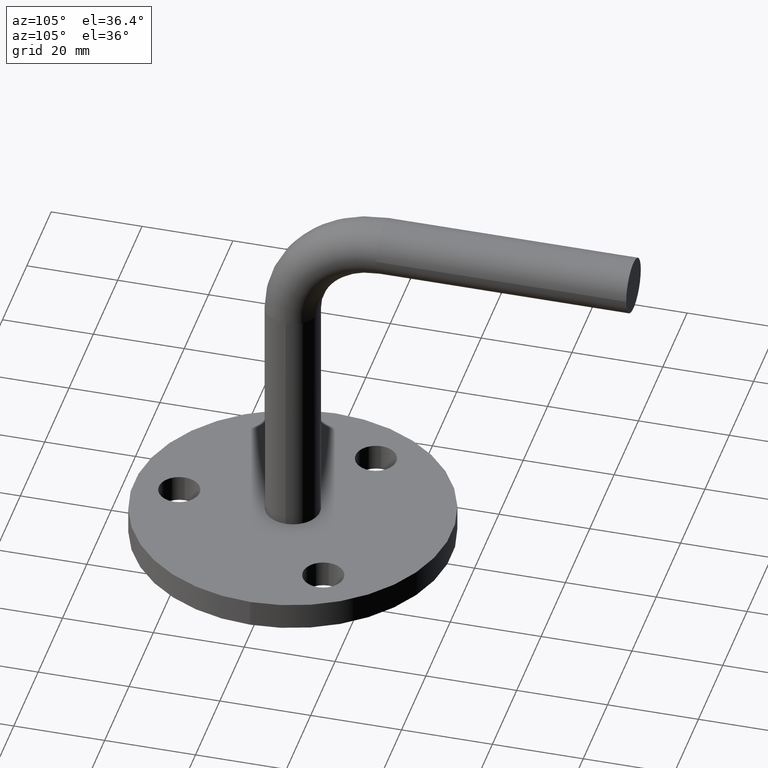
[diagram: clean part render]
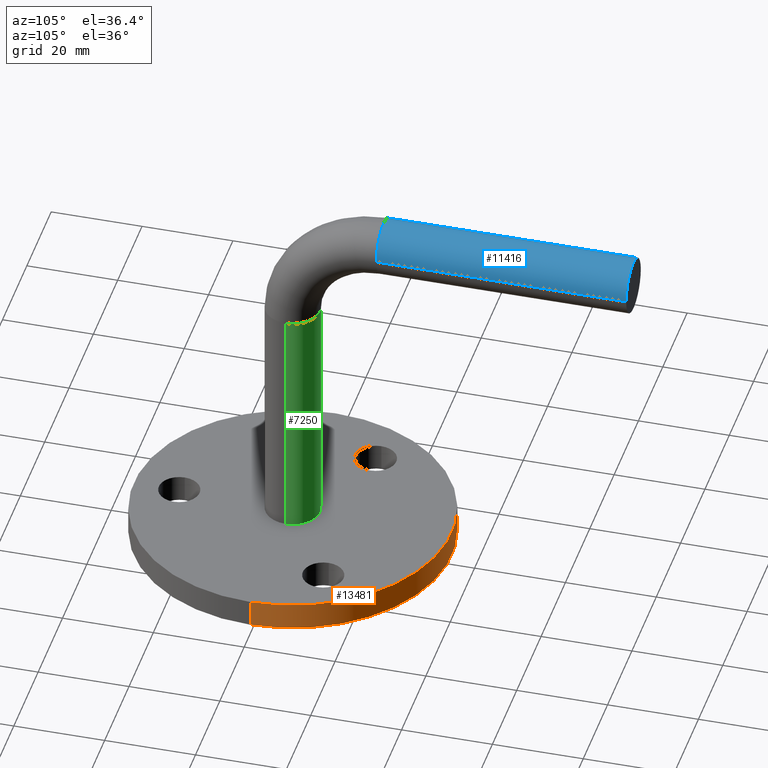
[diagram: same view with three faces highlighted in distinct colors, each labeled with its STEP entity id]
A machine part, auxiliary view with three faces highlighted in distinct colors.
Their STEP definitions:

[orange] entity #13481 — the highlighted cylindrical surface (partial cylindrical patch) has radius 35 mm, axis along (-0, -0, -1).
#420 = CARTESIAN_POINT ( 'NONE',  ( -35.00000000000000700, 0.0000000000000000000, 0.0000000000000000000 ) ) ;
#504 = DIRECTION ( 'NONE',  ( -0.0000000000000000000, -0.0000000000000000000, -1.000000000000000000 ) ) ;
#1533 = VERTEX_POINT ( 'NONE', #10910 ) ;
#1666 = EDGE_LOOP ( 'NONE', ( #3945, #6501, #13848, #8832 ) ) ;
#1690 = DIRECTION ( 'NONE',  ( -1.000000000000000000, 0.0000000000000000000, 0.0000000000000000000 ) ) ;
#2313 = CYLINDRICAL_SURFACE ( 'NONE', #3098, 35.00000000000000700 ) ;
#3098 = AXIS2_PLACEMENT_3D ( 'NONE', #11942, #4459, #1690 ) ;
#3945 = ORIENTED_EDGE ( 'NONE', *, *, #14015, .F. ) ;
#4114 = CARTESIAN_POINT ( 'NONE',  ( 0.0000000000000000000, 0.0000000000000000000, 6.000000000000000000 ) ) ;
#4459 = DIRECTION ( 'NONE',  ( -0.0000000000000000000, -0.0000000000000000000, -1.000000000000000000 ) ) ;
#5165 = VERTEX_POINT ( 'NONE', #14498 ) ;
#5301 = DIRECTION ( 'NONE',  ( 1.000000000000000000, 0.0000000000000000000, 0.0000000000000000000 ) ) ;
#5635 = CIRCLE ( 'NONE', #15534, 35.00000000000000700 ) ;
#6485 = LINE ( 'NONE', #14170, #9128 ) ;
#6501 = ORIENTED_EDGE ( 'NONE', *, *, #15448, .T. ) ;
#6888 = LINE ( 'NONE', #7197, #9932 ) ;
#6944 = DIRECTION ( 'NONE',  ( 1.000000000000000000, 0.0000000000000000000, 0.0000000000000000000 ) ) ;
#7197 = CARTESIAN_POINT ( 'NONE',  ( -35.00000000000000700, 0.0000000000000000000, 6.000000000000000000 ) ) ;
#8377 = FACE_OUTER_BOUND ( 'NONE', #1666, .T. ) ;
#8399 = DIRECTION ( 'NONE',  ( -0.0000000000000000000, -0.0000000000000000000, -1.000000000000000000 ) ) ;
#8832 = ORIENTED_EDGE ( 'NONE', *, *, #12784, .F. ) ;
#9128 = VECTOR ( 'NONE', #504, 1000.000000000000000 ) ;
#9164 = VERTEX_POINT ( 'NONE', #14061 ) ;
#9433 = DIRECTION ( 'NONE',  ( 0.0000000000000000000, 0.0000000000000000000, 1.000000000000000000 ) ) ;
#9695 = EDGE_CURVE ( 'NONE', #1533, #14904, #5635, .T. ) ;
#9900 = CIRCLE ( 'NONE', #14531, 35.00000000000000700 ) ;
#9932 = VECTOR ( 'NONE', #8399, 1000.000000000000000 ) ;
#10910 = CARTESIAN_POINT ( 'NONE',  ( 35.00000000000000700, 4.286263797015737300E-015, 0.0000000000000000000 ) ) ;
#11794 = CARTESIAN_POINT ( 'NONE',  ( 0.0000000000000000000, 0.0000000000000000000, 0.0000000000000000000 ) ) ;
#11942 = CARTESIAN_POINT ( 'NONE',  ( 0.0000000000000000000, 0.0000000000000000000, 6.000000000000000000 ) ) ;
#12670 = DIRECTION ( 'NONE',  ( 0.0000000000000000000, 0.0000000000000000000, 1.000000000000000000 ) ) ;
#12784 = EDGE_CURVE ( 'NONE', #9164, #14904, #6888, .T. ) ;
#13481 = ADVANCED_FACE ( 'NONE', ( #8377 ), #2313, .T. ) ;
#13848 = ORIENTED_EDGE ( 'NONE', *, *, #9695, .T. ) ;
#14015 = EDGE_CURVE ( 'NONE', #5165, #9164, #9900, .T. ) ;
#14061 = CARTESIAN_POINT ( 'NONE',  ( -35.00000000000000700, 0.0000000000000000000, 6.000000000000000000 ) ) ;
#14170 = CARTESIAN_POINT ( 'NONE',  ( 35.00000000000000700, 4.286263797015737300E-015, 6.000000000000000000 ) ) ;
#14498 = CARTESIAN_POINT ( 'NONE',  ( 35.00000000000000700, 4.286263797015737300E-015, 6.000000000000000000 ) ) ;
#14531 = AXIS2_PLACEMENT_3D ( 'NONE', #4114, #12670, #5301 ) ;
#14904 = VERTEX_POINT ( 'NONE', #420 ) ;
#15448 = EDGE_CURVE ( 'NONE', #5165, #1533, #6485, .T. ) ;
#15534 = AXIS2_PLACEMENT_3D ( 'NONE', #11794, #9433, #6944 ) ;

[blue] entity #11416 — the highlighted cylindrical surface (edge-blend (fillet) strip) has radius 6 mm, axis along (0, 1, 0).
#178 = VERTEX_POINT ( 'NONE', #11381 ) ;
#203 = CARTESIAN_POINT ( 'NONE',  ( 6.000000000000006200, 75.00000000000000000, 79.00000000000000000 ) ) ;
#238 = CARTESIAN_POINT ( 'NONE',  ( 6.000000000000000900, 20.00000000000000400, 79.00000000000000000 ) ) ;
#319 = ORIENTED_EDGE ( 'NONE', *, *, #5170, .T. ) ;
#703 = CARTESIAN_POINT ( 'NONE',  ( 0.0000000000000000000, 20.00000000000000400, 79.00000000000000000 ) ) ;
#881 = CARTESIAN_POINT ( 'NONE',  ( -5.999999999999995600, 75.00000000000000000, 79.00000000000000000 ) ) ;
#1482 = DIRECTION ( 'NONE',  ( 8.795190648421900900E-017, 1.000000000000000000, 0.0000000000000000000 ) ) ;
#1710 = ORIENTED_EDGE ( 'NONE', *, *, #6572, .F. ) ;
#1754 = DIRECTION ( 'NONE',  ( 8.795190648421900900E-017, 1.000000000000000000, 0.0000000000000000000 ) ) ;
#2323 = DIRECTION ( 'NONE',  ( 0.0000000000000000000, -1.000000000000000000, 1.608122649676636600E-016 ) ) ;
#2371 = CARTESIAN_POINT ( 'NONE',  ( 0.0000000000000000000, 20.00000000000000400, 79.00000000000000000 ) ) ;
#2441 = ORIENTED_EDGE ( 'NONE', *, *, #8667, .F. ) ;
#2534 = CYLINDRICAL_SURFACE ( 'NONE', #4090, 6.000000000000000900 ) ;
#2931 = VECTOR ( 'NONE', #15340, 1000.000000000000000 ) ;
#2954 = CARTESIAN_POINT ( 'NONE',  ( 0.0000000000000000000, 20.00000000000000400, 79.00000000000000000 ) ) ;
#3187 = CARTESIAN_POINT ( 'NONE',  ( -6.000000000000000900, 20.00000000000000400, 79.00000000000000000 ) ) ;
#3199 = CIRCLE ( 'NONE', #3370, 6.000000000000000900 ) ;
#3370 = AXIS2_PLACEMENT_3D ( 'NONE', #2954, #12684, #5417 ) ;
#4090 = AXIS2_PLACEMENT_3D ( 'NONE', #703, #1754, #9220 ) ;
#4886 = AXIS2_PLACEMENT_3D ( 'NONE', #10808, #9562, #13313 ) ;
#5170 = EDGE_CURVE ( 'NONE', #14762, #11032, #13429, .T. ) ;
#5417 = DIRECTION ( 'NONE',  ( -1.000000000000000000, 0.0000000000000000000, 0.0000000000000000000 ) ) ;
#6349 = EDGE_LOOP ( 'NONE', ( #2441, #12449, #319, #1710, #12841 ) ) ;
#6572 = EDGE_CURVE ( 'NONE', #9583, #11032, #11295, .T. ) ;
#6745 = CARTESIAN_POINT ( 'NONE',  ( 6.000000000000000900, 20.00000000000000400, 79.00000000000000000 ) ) ;
#7633 = AXIS2_PLACEMENT_3D ( 'NONE', #2371, #2323, #10841 ) ;
#8241 = CIRCLE ( 'NONE', #7633, 6.000000000000000900 ) ;
#8667 = EDGE_CURVE ( 'NONE', #8956, #178, #3199, .T. ) ;
#8797 = VECTOR ( 'NONE', #1482, 1000.000000000000000 ) ;
#8956 = VERTEX_POINT ( 'NONE', #238 ) ;
#8986 = FACE_OUTER_BOUND ( 'NONE', #6349, .T. ) ;
#9220 = DIRECTION ( 'NONE',  ( -1.000000000000000000, 0.0000000000000000000, 0.0000000000000000000 ) ) ;
#9562 = DIRECTION ( 'NONE',  ( 0.0000000000000000000, -1.000000000000000000, 1.608122649676636600E-016 ) ) ;
#9583 = VERTEX_POINT ( 'NONE', #3187 ) ;
#9654 = CARTESIAN_POINT ( 'NONE',  ( -6.000000000000000900, 20.00000000000000400, 79.00000000000000000 ) ) ;
#10329 = EDGE_CURVE ( 'NONE', #178, #9583, #8241, .T. ) ;
#10808 = CARTESIAN_POINT ( 'NONE',  ( 4.837354856632045500E-015, 75.00000000000000000, 79.00000000000000000 ) ) ;
#10841 = DIRECTION ( 'NONE',  ( -1.000000000000000000, 0.0000000000000000000, 0.0000000000000000000 ) ) ;
#11032 = VERTEX_POINT ( 'NONE', #881 ) ;
#11295 = LINE ( 'NONE', #9654, #8797 ) ;
#11343 = EDGE_CURVE ( 'NONE', #8956, #14762, #13783, .T. ) ;
#11381 = CARTESIAN_POINT ( 'NONE',  ( 0.0000000000000000000, 20.00000000000000400, 84.99999999999998600 ) ) ;
#11416 = ADVANCED_FACE ( 'NONE', ( #8986 ), #2534, .T. ) ;
#12449 = ORIENTED_EDGE ( 'NONE', *, *, #11343, .T. ) ;
#12684 = DIRECTION ( 'NONE',  ( 0.0000000000000000000, -1.000000000000000000, 1.608122649676636600E-016 ) ) ;
#12841 = ORIENTED_EDGE ( 'NONE', *, *, #10329, .F. ) ;
#13313 = DIRECTION ( 'NONE',  ( -1.000000000000000000, 0.0000000000000000000, 0.0000000000000000000 ) ) ;
#13429 = CIRCLE ( 'NONE', #4886, 6.000000000000000900 ) ;
#13783 = LINE ( 'NONE', #6745, #2931 ) ;
#14762 = VERTEX_POINT ( 'NONE', #203 ) ;
#15340 = DIRECTION ( 'NONE',  ( 8.795190648421900900E-017, 1.000000000000000000, 0.0000000000000000000 ) ) ;

[green] entity #7250 — the highlighted cylindrical surface (edge-blend (fillet) strip) has radius 6 mm, axis along (-0, -0, -1).
#17 = DIRECTION ( 'NONE',  ( -1.000000000000000000, 0.0000000000000000000, 0.0000000000000000000 ) ) ;
#612 = ORIENTED_EDGE ( 'NONE', *, *, #11142, .T. ) ;
#617 = VERTEX_POINT ( 'NONE', #6529 ) ;
#1029 = CARTESIAN_POINT ( 'NONE',  ( 0.0000000000000000000, 0.0000000000000000000, 59.00000000000000000 ) ) ;
#1202 = DIRECTION ( 'NONE',  ( -1.000000000000000000, 0.0000000000000000000, 0.0000000000000000000 ) ) ;
#2013 = LINE ( 'NONE', #15620, #3916 ) ;
#2039 = AXIS2_PLACEMENT_3D ( 'NONE', #8504, #12199, #1202 ) ;
#2184 = DIRECTION ( 'NONE',  ( -1.000000000000000000, 0.0000000000000000000, 0.0000000000000000000 ) ) ;
#2390 = DIRECTION ( 'NONE',  ( 0.0000000000000000000, 0.0000000000000000000, -1.000000000000000000 ) ) ;
#2779 = EDGE_CURVE ( 'NONE', #14095, #13806, #10975, .T. ) ;
#3200 = DIRECTION ( 'NONE',  ( -0.0000000000000000000, -0.0000000000000000000, -1.000000000000000000 ) ) ;
#3551 = ORIENTED_EDGE ( 'NONE', *, *, #15567, .T. ) ;
#3568 = ORIENTED_EDGE ( 'NONE', *, *, #2779, .F. ) ;
#3619 = VERTEX_POINT ( 'NONE', #9438 ) ;
#3916 = VECTOR ( 'NONE', #5928, 1000.000000000000000 ) ;
#4543 = FACE_OUTER_BOUND ( 'NONE', #13530, .T. ) ;
#5418 = CIRCLE ( 'NONE', #13883, 6.000000000000000900 ) ;
#5928 = DIRECTION ( 'NONE',  ( -0.0000000000000000000, -0.0000000000000000000, -1.000000000000000000 ) ) ;
#6296 = ORIENTED_EDGE ( 'NONE', *, *, #7871, .T. ) ;
#6529 = CARTESIAN_POINT ( 'NONE',  ( 7.347880794884119700E-016, 6.000000000000000900, 59.00000000000000000 ) ) ;
#7250 = ADVANCED_FACE ( 'NONE', ( #4543 ), #12536, .T. ) ;
#7273 = DIRECTION ( 'NONE',  ( 0.0000000000000000000, 0.0000000000000000000, 1.000000000000000000 ) ) ;
#7282 = CARTESIAN_POINT ( 'NONE',  ( 0.0000000000000000000, 0.0000000000000000000, 59.00000000000000000 ) ) ;
#7871 = EDGE_CURVE ( 'NONE', #3619, #13806, #7945, .T. ) ;
#7945 = CIRCLE ( 'NONE', #15628, 6.000000000000000900 ) ;
#7952 = CARTESIAN_POINT ( 'NONE',  ( 6.000000000000000900, 7.347880794884120700E-016, 59.00000000000000000 ) ) ;
#8504 = CARTESIAN_POINT ( 'NONE',  ( 0.0000000000000000000, 0.0000000000000000000, 59.00000000000000000 ) ) ;
#8601 = CIRCLE ( 'NONE', #12025, 6.000000000000000900 ) ;
#8633 = DIRECTION ( 'NONE',  ( 0.0000000000000000000, 0.0000000000000000000, -1.000000000000000000 ) ) ;
#9438 = CARTESIAN_POINT ( 'NONE',  ( 6.000000000000000900, 7.347880794884120700E-016, 5.999999999999998200 ) ) ;
#10586 = CARTESIAN_POINT ( 'NONE',  ( -6.000000000000000900, 0.0000000000000000000, 59.00000000000000000 ) ) ;
#10773 = CARTESIAN_POINT ( 'NONE',  ( -6.000000000000000900, 0.0000000000000000000, 5.999999999999998200 ) ) ;
#10975 = LINE ( 'NONE', #10586, #14799 ) ;
#11033 = EDGE_CURVE ( 'NONE', #14095, #617, #8601, .T. ) ;
#11142 = EDGE_CURVE ( 'NONE', #617, #11357, #5418, .T. ) ;
#11357 = VERTEX_POINT ( 'NONE', #7952 ) ;
#11742 = ORIENTED_EDGE ( 'NONE', *, *, #11033, .T. ) ;
#12025 = AXIS2_PLACEMENT_3D ( 'NONE', #1029, #2390, #2184 ) ;
#12171 = CARTESIAN_POINT ( 'NONE',  ( 0.0000000000000000000, 0.0000000000000000000, 5.999999999999998200 ) ) ;
#12199 = DIRECTION ( 'NONE',  ( -0.0000000000000000000, -0.0000000000000000000, -1.000000000000000000 ) ) ;
#12536 = CYLINDRICAL_SURFACE ( 'NONE', #2039, 6.000000000000000900 ) ;
#13530 = EDGE_LOOP ( 'NONE', ( #11742, #612, #3551, #6296, #3568 ) ) ;
#13806 = VERTEX_POINT ( 'NONE', #10773 ) ;
#13883 = AXIS2_PLACEMENT_3D ( 'NONE', #7282, #8633, #17 ) ;
#14095 = VERTEX_POINT ( 'NONE', #15096 ) ;
#14748 = DIRECTION ( 'NONE',  ( 1.000000000000000000, 0.0000000000000000000, 0.0000000000000000000 ) ) ;
#14799 = VECTOR ( 'NONE', #3200, 1000.000000000000000 ) ;
#15096 = CARTESIAN_POINT ( 'NONE',  ( -6.000000000000000900, 0.0000000000000000000, 59.00000000000000000 ) ) ;
#15567 = EDGE_CURVE ( 'NONE', #11357, #3619, #2013, .T. ) ;
#15620 = CARTESIAN_POINT ( 'NONE',  ( 6.000000000000000900, 7.347880794884120700E-016, 59.00000000000000000 ) ) ;
#15628 = AXIS2_PLACEMENT_3D ( 'NONE', #12171, #7273, #14748 ) ;